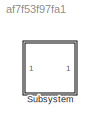
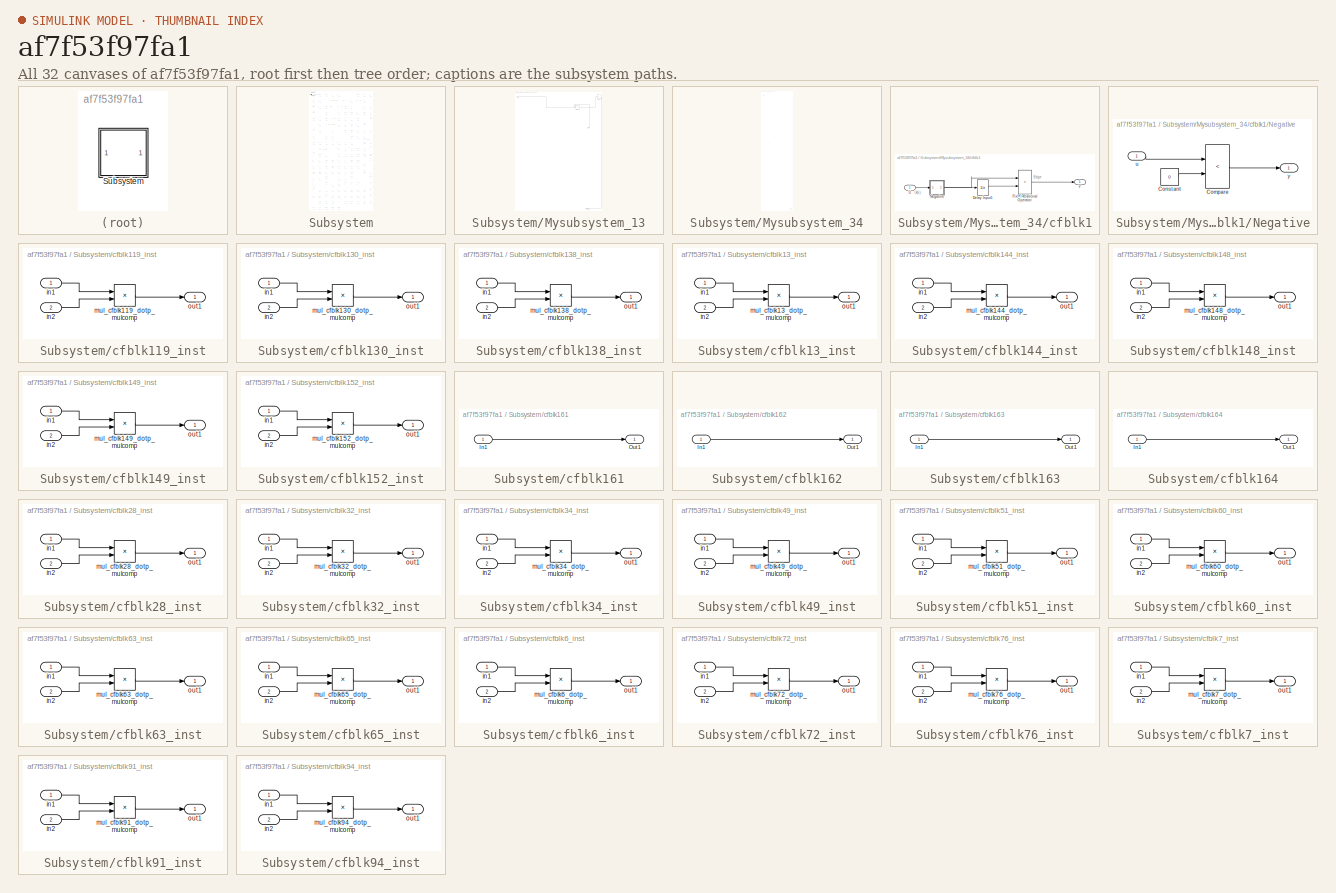
[diagram: thumbnail index - all 32 canvases of the model, root first then tree order]
MODEL slx_af7f53f97fa1
KIND model
CONFIG AbsTol = auto
CONFIG EnableMultiTasking = off
CONFIG FixedStep = auto
CONFIG MaxStep = auto
CONFIG MinStep = auto
CONFIG RelTol = 1e-3
CONFIG SampleTimeConstraint = Unconstrained
CONFIG SolverName = VariableStepAuto
CONFIG StartTime = 0.0
CONFIG StopTime = 10.0
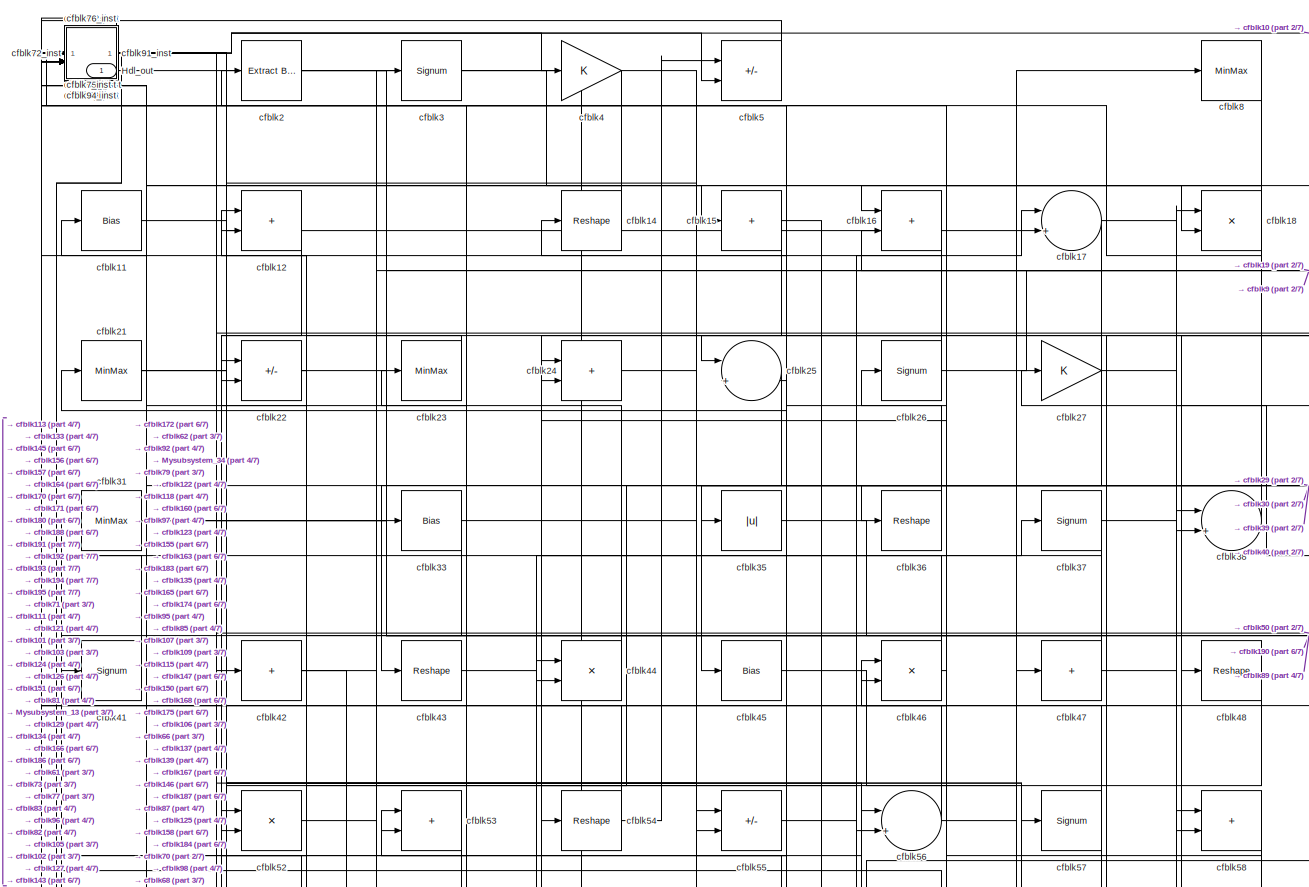
[diagram: Subsystem - part 1/7, full width, top band]
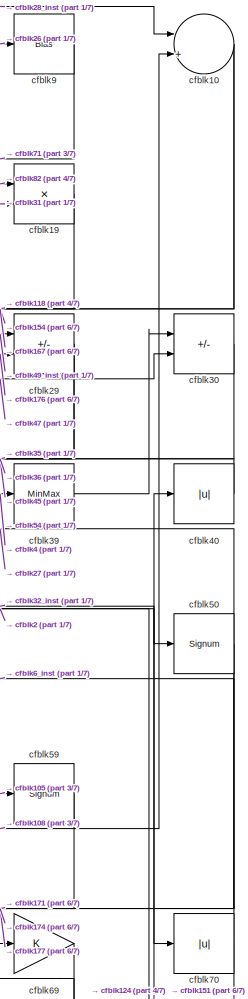
[diagram: Subsystem - part 2/7, top right region]
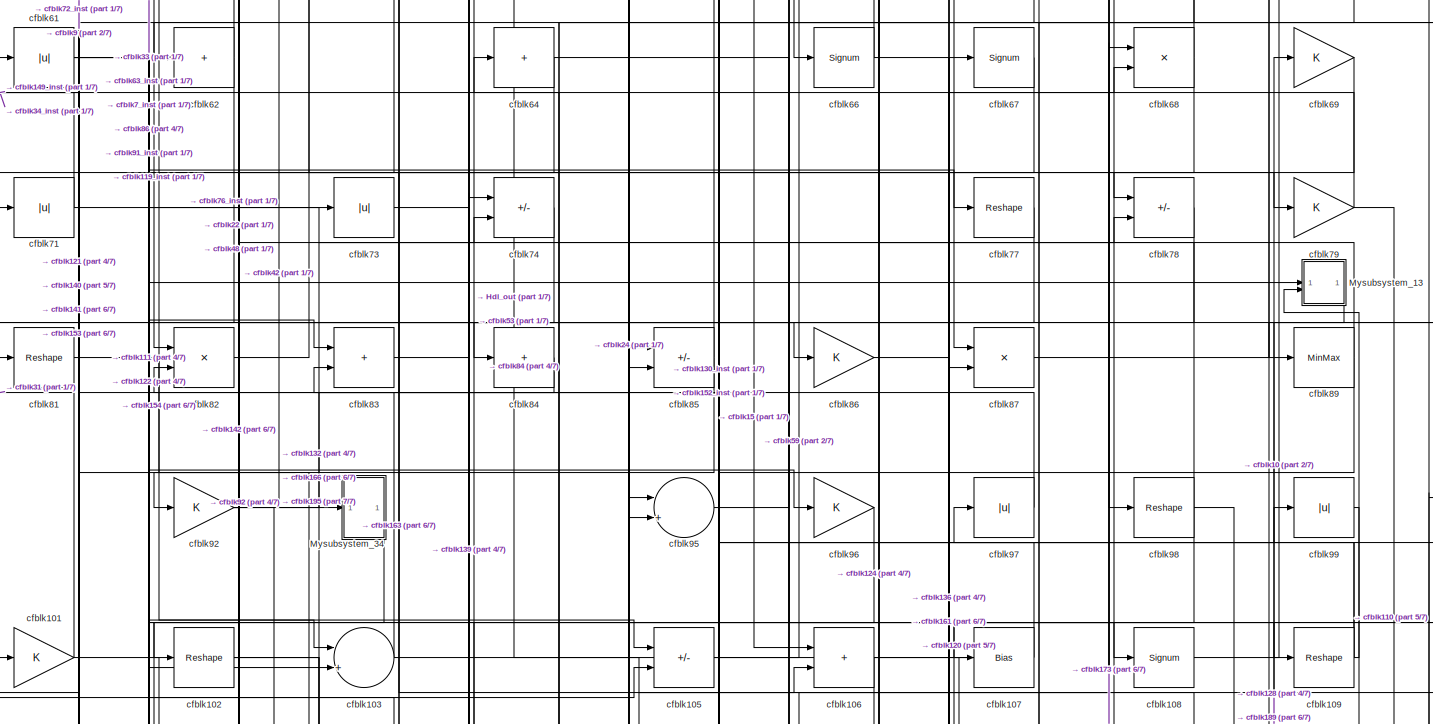
[diagram: Subsystem - part 3/7, full width, middle band]
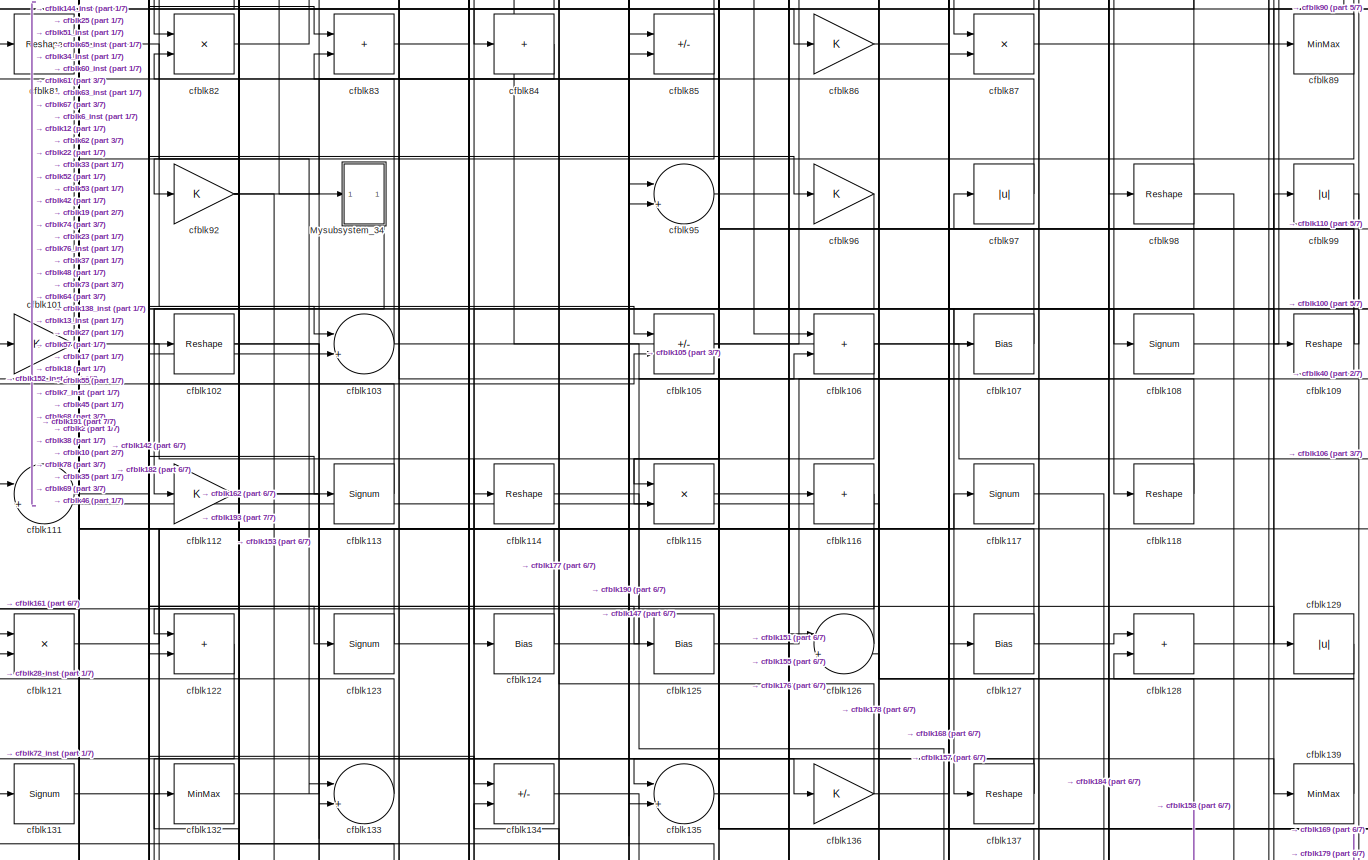
[diagram: Subsystem - part 4/7, full width, middle band]
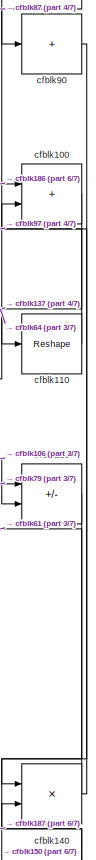
[diagram: Subsystem - part 5/7, middle right region]
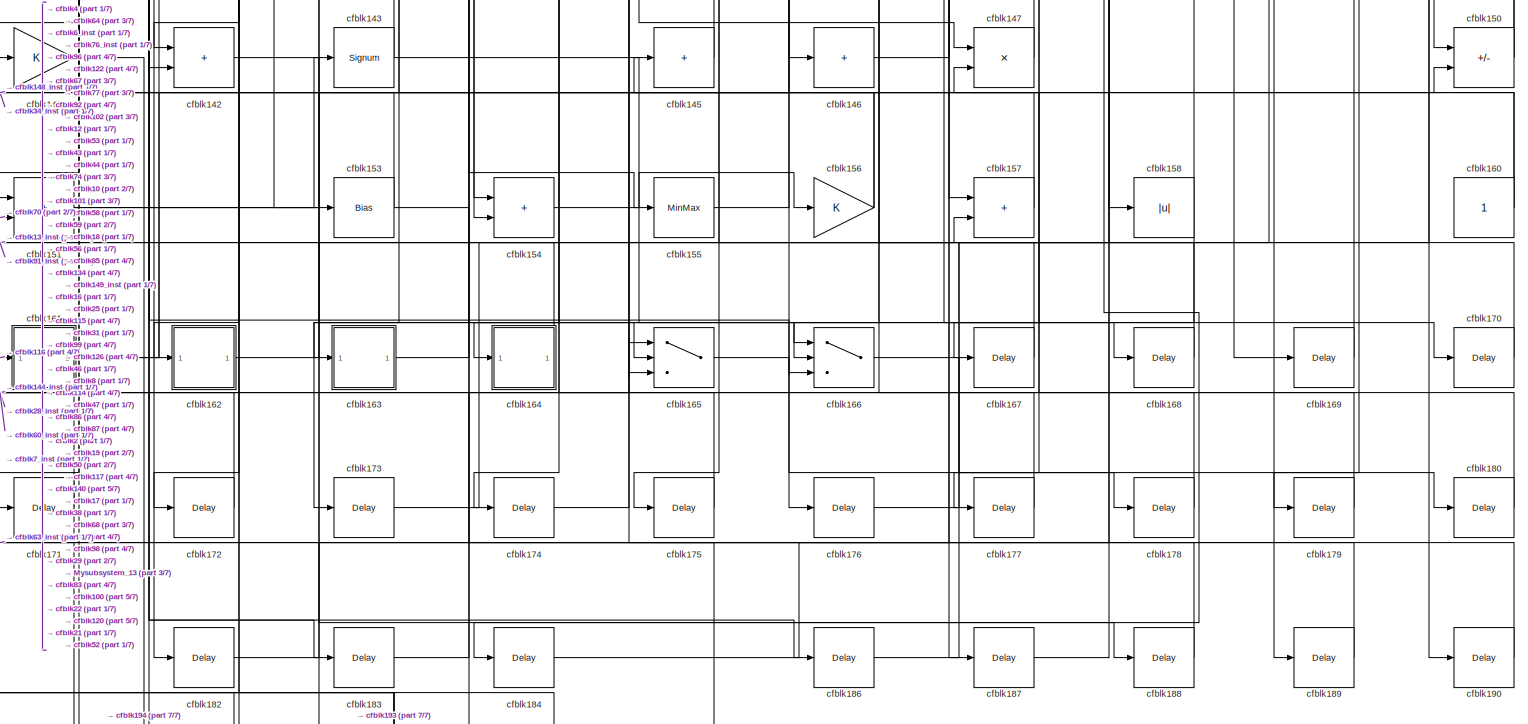
[diagram: Subsystem - part 6/7, full width, bottom band]
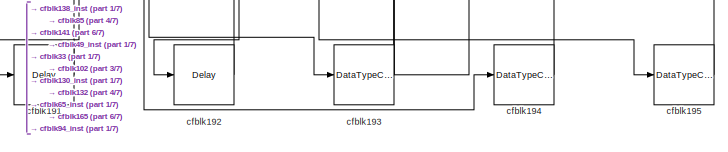
[diagram: Subsystem - part 7/7, bottom left region]
BLOCK [SubSystem] Subsystem
BLOCK [Outport] Subsystem/Hdl_out
  OutDataTypeStr = uint8
  SampleTime = 1
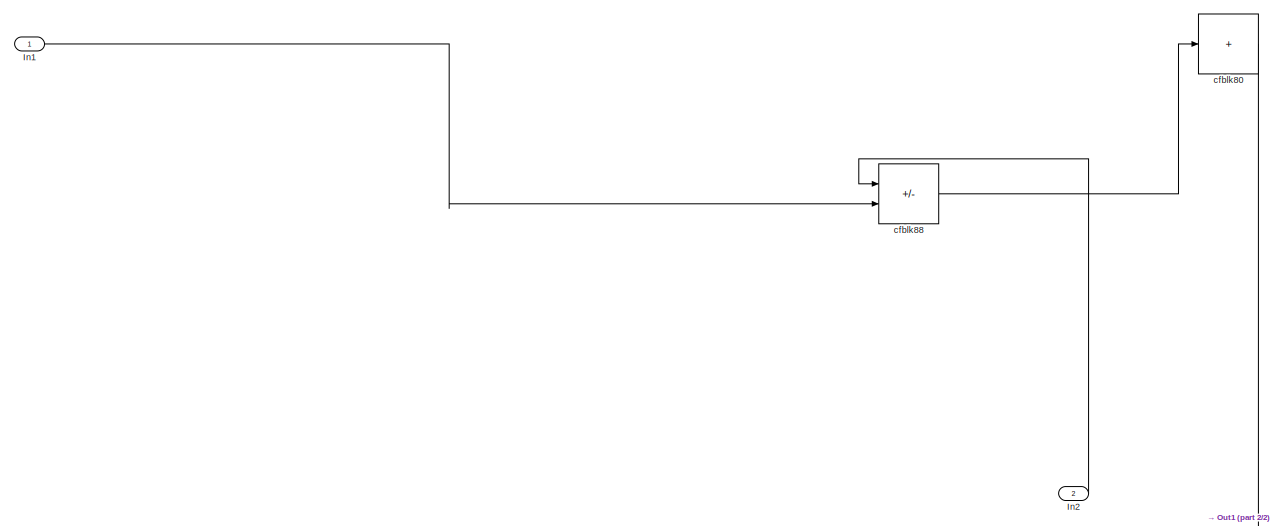
[diagram: Subsystem/Mysubsystem_13 - part 1/2, full width, top band]
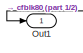
[diagram: Subsystem/Mysubsystem_13 - part 2/2, bottom right region]
BLOCK [SubSystem] Subsystem/Mysubsystem_13
BLOCK [Inport] Subsystem/Mysubsystem_13/In1
  OutDataTypeStr = uint8
  PortDimensions = 1
  SampleTime = 1
BLOCK [Inport] Subsystem/Mysubsystem_13/In2
  OutDataTypeStr = uint8
  Port = 2
  PortDimensions = 1
  SampleTime = 1
BLOCK [Outport] Subsystem/Mysubsystem_13/Out1
  SampleTime = 1
BLOCK [Sum] Subsystem/Mysubsystem_13/cfblk80
  IconShape = rectangular
  Inputs = +
BLOCK [Sum] Subsystem/Mysubsystem_13/cfblk88
  IconShape = rectangular
  Inputs = +-
BLOCK [SubSystem] Subsystem/Mysubsystem_34
BLOCK [Inport] Subsystem/Mysubsystem_34/In1
  OutDataTypeStr = uint8
  PortDimensions = 1
  SampleTime = 1
BLOCK [Outport] Subsystem/Mysubsystem_34/Y
  SampleTime = 1
BLOCK [SubSystem] Subsystem/Mysubsystem_34/cfblk1
BLOCK [UnitDelay] Subsystem/Mysubsystem_34/cfblk1/Delay Input1
  Description = Store in Global RAM
  DisableCoverage = on
  HasFrameUpgradeWarning = on
  InitialCondition = vinit
  SampleTime = -1
BLOCK [RelationalOperator] Subsystem/Mysubsystem_34/cfblk1/FixPt Relational Operator
  InputSameDT = off
  Operator = >
  OutDataTypeStr = boolean
  ZeroCross = off
BLOCK [SubSystem] Subsystem/Mysubsystem_34/cfblk1/Negative
BLOCK [RelationalOperator] Subsystem/Mysubsystem_34/cfblk1/Negative/Compare
  Operator = <
  OutDataTypeStr = boolean
  ZeroCross = off
BLOCK [Constant] Subsystem/Mysubsystem_34/cfblk1/Negative/Constant
  DisableCoverage = on
  OutDataTypeStr = Inherit: Inherit via back propagation
  PreserveConstantTs = on
  SampleTime = -1
  Value = 0
BLOCK [Inport] Subsystem/Mysubsystem_34/cfblk1/Negative/u
  OutDataTypeStr = uint8
  SampleTime = 1
BLOCK [Outport] Subsystem/Mysubsystem_34/cfblk1/Negative/y
  SampleTime = 1
BLOCK [Inport] Subsystem/Mysubsystem_34/cfblk1/U
  OutDataTypeStr = uint8
  SampleTime = 1
BLOCK [Outport] Subsystem/Mysubsystem_34/cfblk1/Y
  SampleTime = 1
BLOCK [Delay] Subsystem/Mysubsystem_34/cfblk185
  InputPortMap = u0
  SampleTime = 1
BLOCK [Sum] Subsystem/cfblk10
  Inputs = |++
  OutDataTypeStr = uint8
BLOCK [Sum] Subsystem/cfblk100
  IconShape = rectangular
  OutDataTypeStr = uint8
BLOCK [Gain] Subsystem/cfblk101
  OutDataTypeStr = uint8
BLOCK [Reshape] Subsystem/cfblk102
BLOCK [Sum] Subsystem/cfblk103
  Inputs = |++
  OutDataTypeStr = uint8
BLOCK [Sum] Subsystem/cfblk105
  IconShape = rectangular
  Inputs = +-
  OutDataTypeStr = uint8
BLOCK [Sum] Subsystem/cfblk106
  IconShape = rectangular
  OutDataTypeStr = uint8
BLOCK [Bias] Subsystem/cfblk107
  Bias = 0.0
  SaturateOnIntegerOverflow = off
BLOCK [Signum] Subsystem/cfblk108
BLOCK [Reshape] Subsystem/cfblk109
BLOCK [Bias] Subsystem/cfblk11
  Bias = 0.0
  SaturateOnIntegerOverflow = off
BLOCK [Reshape] Subsystem/cfblk110
BLOCK [Sum] Subsystem/cfblk111
  Inputs = |++
  OutDataTypeStr = uint8
BLOCK [Gain] Subsystem/cfblk112
  OutDataTypeStr = uint8
BLOCK [Signum] Subsystem/cfblk113
BLOCK [Reshape] Subsystem/cfblk114
BLOCK [Product] Subsystem/cfblk115
  Inputs = */
  OutDataTypeStr = uint8
  RndMeth = Zero
  SaturateOnIntegerOverflow = on
BLOCK [Sum] Subsystem/cfblk116
  IconShape = rectangular
  Inputs = +
  OutDataTypeStr = uint8
BLOCK [Signum] Subsystem/cfblk117
BLOCK [Reshape] Subsystem/cfblk118
BLOCK [SubSystem] Subsystem/cfblk119_inst
BLOCK [Inport] Subsystem/cfblk119_inst/in1
  OutDataTypeStr = uint8
  SampleTime = 1
BLOCK [Inport] Subsystem/cfblk119_inst/in2
  OutDataTypeStr = uint8
  Port = 2
  SampleTime = 1
BLOCK [Product] Subsystem/cfblk119_inst/mul_cfblk119_dotp_mulcomp
  Inputs = **
  OutDataTypeStr = uint8
  SampleTime = 1
BLOCK [Outport] Subsystem/cfblk119_inst/out1
  OutDataTypeStr = uint8
  SampleTime = 1
BLOCK [Sum] Subsystem/cfblk12
  IconShape = rectangular
  OutDataTypeStr = uint8
BLOCK [Sum] Subsystem/cfblk120
  IconShape = rectangular
  Inputs = +-
  OutDataTypeStr = uint8
BLOCK [Product] Subsystem/cfblk121
  Inputs = */
  OutDataTypeStr = uint8
  RndMeth = Zero
  SaturateOnIntegerOverflow = on
BLOCK [Sum] Subsystem/cfblk122
  IconShape = rectangular
  OutDataTypeStr = uint8
BLOCK [Signum] Subsystem/cfblk123
BLOCK [Bias] Subsystem/cfblk124
  Bias = 0.0
  SaturateOnIntegerOverflow = off
BLOCK [Bias] Subsystem/cfblk125
  Bias = 0.0
  SaturateOnIntegerOverflow = off
BLOCK [Sum] Subsystem/cfblk126
  Inputs = |++
  OutDataTypeStr = uint8
BLOCK [Bias] Subsystem/cfblk127
  Bias = 0.0
  SaturateOnIntegerOverflow = off
BLOCK [Sum] Subsystem/cfblk128
  IconShape = rectangular
  OutDataTypeStr = uint8
BLOCK [Abs] Subsystem/cfblk129
  OutDataTypeStr = uint8
  SaturateOnIntegerOverflow = off
BLOCK [SubSystem] Subsystem/cfblk130_inst
BLOCK [Inport] Subsystem/cfblk130_inst/in1
  OutDataTypeStr = uint8
  SampleTime = 1
BLOCK [Inport] Subsystem/cfblk130_inst/in2
  OutDataTypeStr = uint8
  Port = 2
  SampleTime = 1
BLOCK [Product] Subsystem/cfblk130_inst/mul_cfblk130_dotp_mulcomp
  Inputs = **
  OutDataTypeStr = uint8
  SampleTime = 1
BLOCK [Outport] Subsystem/cfblk130_inst/out1
  OutDataTypeStr = uint8
  SampleTime = 1
BLOCK [Signum] Subsystem/cfblk131
BLOCK [MinMax] Subsystem/cfblk132
  OutDataTypeStr = uint8
BLOCK [Sum] Subsystem/cfblk133
  Inputs = |++
  OutDataTypeStr = uint8
BLOCK [Sum] Subsystem/cfblk134
  IconShape = rectangular
  Inputs = +-
  OutDataTypeStr = uint8
BLOCK [Sum] Subsystem/cfblk135
  Inputs = |++
  OutDataTypeStr = uint8
BLOCK [Gain] Subsystem/cfblk136
  OutDataTypeStr = uint8
BLOCK [Reshape] Subsystem/cfblk137
BLOCK [SubSystem] Subsystem/cfblk138_inst
BLOCK [Inport] Subsystem/cfblk138_inst/in1
  OutDataTypeStr = uint8
  SampleTime = 1
BLOCK [Inport] Subsystem/cfblk138_inst/in2
  OutDataTypeStr = uint8
  Port = 2
  SampleTime = 1
BLOCK [Product] Subsystem/cfblk138_inst/mul_cfblk138_dotp_mulcomp
  Inputs = **
  OutDataTypeStr = uint8
  SampleTime = 1
BLOCK [Outport] Subsystem/cfblk138_inst/out1
  OutDataTypeStr = uint8
  SampleTime = 1
BLOCK [MinMax] Subsystem/cfblk139
  OutDataTypeStr = uint8
BLOCK [SubSystem] Subsystem/cfblk13_inst
BLOCK [Inport] Subsystem/cfblk13_inst/in1
  OutDataTypeStr = uint8
  SampleTime = 1
BLOCK [Inport] Subsystem/cfblk13_inst/in2
  OutDataTypeStr = uint8
  Port = 2
  SampleTime = 1
BLOCK [Product] Subsystem/cfblk13_inst/mul_cfblk13_dotp_mulcomp
  Inputs = **
  OutDataTypeStr = uint8
  SampleTime = 1
BLOCK [Outport] Subsystem/cfblk13_inst/out1
  OutDataTypeStr = uint8
  SampleTime = 1
BLOCK [Reshape] Subsystem/cfblk14
BLOCK [Product] Subsystem/cfblk140
  Inputs = */
  OutDataTypeStr = uint8
  RndMeth = Zero
  SaturateOnIntegerOverflow = on
BLOCK [Gain] Subsystem/cfblk141
  OutDataTypeStr = uint8
BLOCK [Sum] Subsystem/cfblk142
  IconShape = rectangular
  OutDataTypeStr = uint8
BLOCK [Signum] Subsystem/cfblk143
BLOCK [SubSystem] Subsystem/cfblk144_inst
BLOCK [Inport] Subsystem/cfblk144_inst/in1
  OutDataTypeStr = uint8
  SampleTime = 1
BLOCK [Inport] Subsystem/cfblk144_inst/in2
  OutDataTypeStr = uint8
  Port = 2
  SampleTime = 1
BLOCK [Product] Subsystem/cfblk144_inst/mul_cfblk144_dotp_mulcomp
  Inputs = **
  OutDataTypeStr = uint8
  SampleTime = 1
BLOCK [Outport] Subsystem/cfblk144_inst/out1
  OutDataTypeStr = uint8
  SampleTime = 1
BLOCK [Sum] Subsystem/cfblk145
  IconShape = rectangular
  Inputs = +
  OutDataTypeStr = uint8
BLOCK [Sum] Subsystem/cfblk146
  IconShape = rectangular
  Inputs = +
  OutDataTypeStr = uint8
BLOCK [Product] Subsystem/cfblk147
  Inputs = */
  OutDataTypeStr = uint8
  RndMeth = Zero
  SaturateOnIntegerOverflow = on
BLOCK [SubSystem] Subsystem/cfblk148_inst
BLOCK [Inport] Subsystem/cfblk148_inst/in1
  OutDataTypeStr = uint8
  SampleTime = 1
BLOCK [Inport] Subsystem/cfblk148_inst/in2
  OutDataTypeStr = uint8
  Port = 2
  SampleTime = 1
BLOCK [Product] Subsystem/cfblk148_inst/mul_cfblk148_dotp_mulcomp
  Inputs = **
  OutDataTypeStr = uint8
  SampleTime = 1
BLOCK [Outport] Subsystem/cfblk148_inst/out1
  OutDataTypeStr = uint8
  SampleTime = 1
BLOCK [SubSystem] Subsystem/cfblk149_inst
BLOCK [Inport] Subsystem/cfblk149_inst/in1
  OutDataTypeStr = uint8
  SampleTime = 1
BLOCK [Inport] Subsystem/cfblk149_inst/in2
  OutDataTypeStr = uint8
  Port = 2
  SampleTime = 1
BLOCK [Product] Subsystem/cfblk149_inst/mul_cfblk149_dotp_mulcomp
  Inputs = **
  OutDataTypeStr = uint8
  SampleTime = 1
BLOCK [Outport] Subsystem/cfblk149_inst/out1
  OutDataTypeStr = uint8
  SampleTime = 1
BLOCK [Sum] Subsystem/cfblk15
  IconShape = rectangular
  Inputs = +
  OutDataTypeStr = uint8
BLOCK [Sum] Subsystem/cfblk150
  IconShape = rectangular
  Inputs = +-
  OutDataTypeStr = uint8
BLOCK [Sum] Subsystem/cfblk151
  IconShape = rectangular
  OutDataTypeStr = uint8
BLOCK [SubSystem] Subsystem/cfblk152_inst
BLOCK [Inport] Subsystem/cfblk152_inst/in1
  OutDataTypeStr = uint8
  SampleTime = 1
BLOCK [Inport] Subsystem/cfblk152_inst/in2
  OutDataTypeStr = uint8
  Port = 2
  SampleTime = 1
BLOCK [Product] Subsystem/cfblk152_inst/mul_cfblk152_dotp_mulcomp
  Inputs = **
  OutDataTypeStr = uint8
  SampleTime = 1
BLOCK [Outport] Subsystem/cfblk152_inst/out1
  OutDataTypeStr = uint8
  SampleTime = 1
BLOCK [Bias] Subsystem/cfblk153
  Bias = 0.0
  SaturateOnIntegerOverflow = off
BLOCK [Sum] Subsystem/cfblk154
  IconShape = rectangular
  OutDataTypeStr = uint8
BLOCK [MinMax] Subsystem/cfblk155
  OutDataTypeStr = uint8
BLOCK [Gain] Subsystem/cfblk156
  OutDataTypeStr = uint8
BLOCK [Sum] Subsystem/cfblk157
  IconShape = rectangular
  OutDataTypeStr = uint8
BLOCK [Abs] Subsystem/cfblk158
  OutDataTypeStr = uint8
  SaturateOnIntegerOverflow = off
BLOCK [Sum] Subsystem/cfblk16
  IconShape = rectangular
  OutDataTypeStr = uint8
BLOCK [Constant] Subsystem/cfblk160
  OutDataTypeStr = uint8
  SampleTime = -1
BLOCK [SubSystem] Subsystem/cfblk161
BLOCK [Inport] Subsystem/cfblk161/In1
  OutDataTypeStr = uint8
  PortDimensions = 1
  SampleTime = 1
BLOCK [Outport] Subsystem/cfblk161/Out1
  SampleTime = 1
BLOCK [SubSystem] Subsystem/cfblk162
BLOCK [Inport] Subsystem/cfblk162/In1
  OutDataTypeStr = uint8
  PortDimensions = 1
  SampleTime = 1
BLOCK [Outport] Subsystem/cfblk162/Out1
  SampleTime = 1
BLOCK [SubSystem] Subsystem/cfblk163
BLOCK [Inport] Subsystem/cfblk163/In1
  OutDataTypeStr = uint8
  PortDimensions = 1
  SampleTime = 1
BLOCK [Outport] Subsystem/cfblk163/Out1
  SampleTime = 1
BLOCK [SubSystem] Subsystem/cfblk164
BLOCK [Inport] Subsystem/cfblk164/In1
  OutDataTypeStr = uint8
  PortDimensions = 1
  SampleTime = 1
BLOCK [Outport] Subsystem/cfblk164/Out1
  SampleTime = 1
BLOCK [Switch] Subsystem/cfblk165
  InputSameDT = off
  OutDataTypeStr = uint8
  SaturateOnIntegerOverflow = off
BLOCK [Switch] Subsystem/cfblk166
  InputSameDT = off
  OutDataTypeStr = uint8
  SaturateOnIntegerOverflow = off
BLOCK [Delay] Subsystem/cfblk167
  InputPortMap = u0
  SampleTime = 1
BLOCK [Delay] Subsystem/cfblk168
  InputPortMap = u0
  SampleTime = 1
BLOCK [Delay] Subsystem/cfblk169
  InputPortMap = u0
  SampleTime = 1
BLOCK [Sum] Subsystem/cfblk17
  Inputs = |++
  OutDataTypeStr = uint8
BLOCK [Delay] Subsystem/cfblk170
  InputPortMap = u0
  SampleTime = 1
BLOCK [Delay] Subsystem/cfblk171
  InputPortMap = u0
  SampleTime = 1
BLOCK [Delay] Subsystem/cfblk172
  InputPortMap = u0
  SampleTime = 1
BLOCK [Delay] Subsystem/cfblk173
  InputPortMap = u0
  SampleTime = 1
BLOCK [Delay] Subsystem/cfblk174
  InputPortMap = u0
  SampleTime = 1
BLOCK [Delay] Subsystem/cfblk175
  InputPortMap = u0
  SampleTime = 1
BLOCK [Delay] Subsystem/cfblk176
  InputPortMap = u0
  SampleTime = 1
BLOCK [Delay] Subsystem/cfblk177
  InputPortMap = u0
  SampleTime = 1
BLOCK [Delay] Subsystem/cfblk178
  InputPortMap = u0
  SampleTime = 1
BLOCK [Delay] Subsystem/cfblk179
  InputPortMap = u0
  SampleTime = 1
BLOCK [Product] Subsystem/cfblk18
  Inputs = */
  OutDataTypeStr = uint8
  RndMeth = Zero
  SaturateOnIntegerOverflow = on
BLOCK [Delay] Subsystem/cfblk180
  InputPortMap = u0
  SampleTime = 1
BLOCK [Delay] Subsystem/cfblk182
  InputPortMap = u0
  SampleTime = 1
BLOCK [Delay] Subsystem/cfblk183
  InputPortMap = u0
  SampleTime = 1
BLOCK [Delay] Subsystem/cfblk184
  InputPortMap = u0
  SampleTime = 1
BLOCK [Delay] Subsystem/cfblk186
  InputPortMap = u0
  SampleTime = 1
BLOCK [Delay] Subsystem/cfblk187
  InputPortMap = u0
  SampleTime = 1
BLOCK [Delay] Subsystem/cfblk188
  InputPortMap = u0
  SampleTime = 1
BLOCK [Delay] Subsystem/cfblk189
  InputPortMap = u0
  SampleTime = 1
BLOCK [Product] Subsystem/cfblk19
  Inputs = */
  OutDataTypeStr = uint8
  RndMeth = Zero
  SaturateOnIntegerOverflow = on
BLOCK [Delay] Subsystem/cfblk190
  InputPortMap = u0
  SampleTime = 1
BLOCK [Delay] Subsystem/cfblk191
  InputPortMap = u0
  SampleTime = 1
BLOCK [Delay] Subsystem/cfblk192
  InputPortMap = u0
  SampleTime = 1
BLOCK [DataTypeConversion] Subsystem/cfblk193
  OutDataTypeStr = uint8
  RndMeth = Floor
  SaturateOnIntegerOverflow = off
BLOCK [DataTypeConversion] Subsystem/cfblk194
  OutDataTypeStr = uint8
  RndMeth = Floor
  SaturateOnIntegerOverflow = off
BLOCK [DataTypeConversion] Subsystem/cfblk195
  OutDataTypeStr = uint8
  RndMeth = Floor
  SaturateOnIntegerOverflow = off
BLOCK [Reference] Subsystem/cfblk2  REF=simulink/Logic and Bit
Operations/Extract Bits
  LibrarySourceBlock = hdlsllib/Logic and Bit\nOperations/Extract Bits
  SourceBlock = simulink/Logic and Bit\nOperations/Extract Bits
  SourceType = Extract Bits
BLOCK [MinMax] Subsystem/cfblk21
  OutDataTypeStr = uint8
BLOCK [Sum] Subsystem/cfblk22
  IconShape = rectangular
  Inputs = +-
  OutDataTypeStr = uint8
BLOCK [MinMax] Subsystem/cfblk23
  OutDataTypeStr = uint8
BLOCK [Sum] Subsystem/cfblk24
  IconShape = rectangular
  OutDataTypeStr = uint8
BLOCK [Sum] Subsystem/cfblk25
  Inputs = |++
  OutDataTypeStr = uint8
BLOCK [Signum] Subsystem/cfblk26
BLOCK [Gain] Subsystem/cfblk27
  OutDataTypeStr = uint8
BLOCK [SubSystem] Subsystem/cfblk28_inst
BLOCK [Inport] Subsystem/cfblk28_inst/in1
  OutDataTypeStr = uint8
  SampleTime = 1
BLOCK [Inport] Subsystem/cfblk28_inst/in2
  OutDataTypeStr = uint8
  Port = 2
  SampleTime = 1
BLOCK [Product] Subsystem/cfblk28_inst/mul_cfblk28_dotp_mulcomp
  Inputs = **
  OutDataTypeStr = uint8
  SampleTime = 1
BLOCK [Outport] Subsystem/cfblk28_inst/out1
  OutDataTypeStr = uint8
  SampleTime = 1
BLOCK [Sum] Subsystem/cfblk29
  IconShape = rectangular
  Inputs = +-
  OutDataTypeStr = uint8
BLOCK [Signum] Subsystem/cfblk3
BLOCK [Sum] Subsystem/cfblk30
  IconShape = rectangular
  Inputs = +-
  OutDataTypeStr = uint8
BLOCK [MinMax] Subsystem/cfblk31
  OutDataTypeStr = uint8
BLOCK [SubSystem] Subsystem/cfblk32_inst
BLOCK [Inport] Subsystem/cfblk32_inst/in1
  OutDataTypeStr = uint8
  SampleTime = 1
BLOCK [Inport] Subsystem/cfblk32_inst/in2
  OutDataTypeStr = uint8
  Port = 2
  SampleTime = 1
BLOCK [Product] Subsystem/cfblk32_inst/mul_cfblk32_dotp_mulcomp
  Inputs = **
  OutDataTypeStr = uint8
  SampleTime = 1
BLOCK [Outport] Subsystem/cfblk32_inst/out1
  OutDataTypeStr = uint8
  SampleTime = 1
BLOCK [Bias] Subsystem/cfblk33
  Bias = 0.0
  SaturateOnIntegerOverflow = off
BLOCK [SubSystem] Subsystem/cfblk34_inst
BLOCK [Inport] Subsystem/cfblk34_inst/in1
  OutDataTypeStr = uint8
  SampleTime = 1
BLOCK [Inport] Subsystem/cfblk34_inst/in2
  OutDataTypeStr = uint8
  Port = 2
  SampleTime = 1
BLOCK [Product] Subsystem/cfblk34_inst/mul_cfblk34_dotp_mulcomp
  Inputs = **
  OutDataTypeStr = uint8
  SampleTime = 1
BLOCK [Outport] Subsystem/cfblk34_inst/out1
  OutDataTypeStr = uint8
  SampleTime = 1
BLOCK [Abs] Subsystem/cfblk35
  OutDataTypeStr = uint8
  SaturateOnIntegerOverflow = off
BLOCK [Reshape] Subsystem/cfblk36
BLOCK [Signum] Subsystem/cfblk37
BLOCK [Sum] Subsystem/cfblk38
  Inputs = |++
  OutDataTypeStr = uint8
BLOCK [MinMax] Subsystem/cfblk39
  OutDataTypeStr = uint8
BLOCK [Gain] Subsystem/cfblk4
  OutDataTypeStr = uint8
BLOCK [Abs] Subsystem/cfblk40
  OutDataTypeStr = uint8
  SaturateOnIntegerOverflow = off
BLOCK [Signum] Subsystem/cfblk41
BLOCK [Sum] Subsystem/cfblk42
  IconShape = rectangular
  Inputs = +
  OutDataTypeStr = uint8
BLOCK [Reshape] Subsystem/cfblk43
BLOCK [Product] Subsystem/cfblk44
  Inputs = */
  OutDataTypeStr = uint8
  RndMeth = Zero
  SaturateOnIntegerOverflow = on
BLOCK [Bias] Subsystem/cfblk45
  Bias = 0.0
  SaturateOnIntegerOverflow = off
BLOCK [Product] Subsystem/cfblk46
  Inputs = */
  OutDataTypeStr = uint8
  RndMeth = Zero
  SaturateOnIntegerOverflow = on
BLOCK [Sum] Subsystem/cfblk47
  IconShape = rectangular
  Inputs = +
  OutDataTypeStr = uint8
BLOCK [Reshape] Subsystem/cfblk48
BLOCK [SubSystem] Subsystem/cfblk49_inst
BLOCK [Inport] Subsystem/cfblk49_inst/in1
  OutDataTypeStr = uint8
  SampleTime = 1
BLOCK [Inport] Subsystem/cfblk49_inst/in2
  OutDataTypeStr = uint8
  Port = 2
  SampleTime = 1
BLOCK [Product] Subsystem/cfblk49_inst/mul_cfblk49_dotp_mulcomp
  Inputs = **
  OutDataTypeStr = uint8
  SampleTime = 1
BLOCK [Outport] Subsystem/cfblk49_inst/out1
  OutDataTypeStr = uint8
  SampleTime = 1
BLOCK [Sum] Subsystem/cfblk5
  IconShape = rectangular
  Inputs = +-
  OutDataTypeStr = uint8
BLOCK [Signum] Subsystem/cfblk50
BLOCK [SubSystem] Subsystem/cfblk51_inst
BLOCK [Inport] Subsystem/cfblk51_inst/in1
  OutDataTypeStr = uint8
  SampleTime = 1
BLOCK [Inport] Subsystem/cfblk51_inst/in2
  OutDataTypeStr = uint8
  Port = 2
  SampleTime = 1
BLOCK [Product] Subsystem/cfblk51_inst/mul_cfblk51_dotp_mulcomp
  Inputs = **
  OutDataTypeStr = uint8
  SampleTime = 1
BLOCK [Outport] Subsystem/cfblk51_inst/out1
  OutDataTypeStr = uint8
  SampleTime = 1
BLOCK [Product] Subsystem/cfblk52
  Inputs = */
  OutDataTypeStr = uint8
  RndMeth = Zero
  SaturateOnIntegerOverflow = on
BLOCK [Sum] Subsystem/cfblk53
  IconShape = rectangular
  OutDataTypeStr = uint8
BLOCK [Reshape] Subsystem/cfblk54
BLOCK [Sum] Subsystem/cfblk55
  IconShape = rectangular
  Inputs = +-
  OutDataTypeStr = uint8
BLOCK [Sum] Subsystem/cfblk56
  Inputs = |++
  OutDataTypeStr = uint8
BLOCK [Signum] Subsystem/cfblk57
BLOCK [Sum] Subsystem/cfblk58
  IconShape = rectangular
  OutDataTypeStr = uint8
BLOCK [Signum] Subsystem/cfblk59
BLOCK [SubSystem] Subsystem/cfblk60_inst
BLOCK [Inport] Subsystem/cfblk60_inst/in1
  OutDataTypeStr = uint8
  SampleTime = 1
BLOCK [Inport] Subsystem/cfblk60_inst/in2
  OutDataTypeStr = uint8
  Port = 2
  SampleTime = 1
BLOCK [Product] Subsystem/cfblk60_inst/mul_cfblk60_dotp_mulcomp
  Inputs = **
  OutDataTypeStr = uint8
  SampleTime = 1
BLOCK [Outport] Subsystem/cfblk60_inst/out1
  OutDataTypeStr = uint8
  SampleTime = 1
BLOCK [Abs] Subsystem/cfblk61
  OutDataTypeStr = uint8
  SaturateOnIntegerOverflow = off
BLOCK [Sum] Subsystem/cfblk62
  IconShape = rectangular
  Inputs = +
  OutDataTypeStr = uint8
BLOCK [SubSystem] Subsystem/cfblk63_inst
BLOCK [Inport] Subsystem/cfblk63_inst/in1
  OutDataTypeStr = uint8
  SampleTime = 1
BLOCK [Inport] Subsystem/cfblk63_inst/in2
  OutDataTypeStr = uint8
  Port = 2
  SampleTime = 1
BLOCK [Product] Subsystem/cfblk63_inst/mul_cfblk63_dotp_mulcomp
  Inputs = **
  OutDataTypeStr = uint8
  SampleTime = 1
BLOCK [Outport] Subsystem/cfblk63_inst/out1
  OutDataTypeStr = uint8
  SampleTime = 1
BLOCK [Sum] Subsystem/cfblk64
  IconShape = rectangular
  Inputs = +
  OutDataTypeStr = uint8
BLOCK [SubSystem] Subsystem/cfblk65_inst
BLOCK [Inport] Subsystem/cfblk65_inst/in1
  OutDataTypeStr = uint8
  SampleTime = 1
BLOCK [Inport] Subsystem/cfblk65_inst/in2
  OutDataTypeStr = uint8
  Port = 2
  SampleTime = 1
BLOCK [Product] Subsystem/cfblk65_inst/mul_cfblk65_dotp_mulcomp
  Inputs = **
  OutDataTypeStr = uint8
  SampleTime = 1
BLOCK [Outport] Subsystem/cfblk65_inst/out1
  OutDataTypeStr = uint8
  SampleTime = 1
BLOCK [Signum] Subsystem/cfblk66
BLOCK [Signum] Subsystem/cfblk67
BLOCK [Product] Subsystem/cfblk68
  Inputs = */
  OutDataTypeStr = uint8
  RndMeth = Zero
  SaturateOnIntegerOverflow = on
BLOCK [Gain] Subsystem/cfblk69
  OutDataTypeStr = uint8
BLOCK [SubSystem] Subsystem/cfblk6_inst
BLOCK [Inport] Subsystem/cfblk6_inst/in1
  OutDataTypeStr = uint8
  SampleTime = 1
BLOCK [Inport] Subsystem/cfblk6_inst/in2
  OutDataTypeStr = uint8
  Port = 2
  SampleTime = 1
BLOCK [Product] Subsystem/cfblk6_inst/mul_cfblk6_dotp_mulcomp
  Inputs = **
  OutDataTypeStr = uint8
  SampleTime = 1
BLOCK [Outport] Subsystem/cfblk6_inst/out1
  OutDataTypeStr = uint8
  SampleTime = 1
BLOCK [Abs] Subsystem/cfblk70
  OutDataTypeStr = uint8
  SaturateOnIntegerOverflow = off
BLOCK [Abs] Subsystem/cfblk71
  OutDataTypeStr = uint8
  SaturateOnIntegerOverflow = off
BLOCK [SubSystem] Subsystem/cfblk72_inst
BLOCK [Inport] Subsystem/cfblk72_inst/in1
  OutDataTypeStr = uint8
  SampleTime = 1
BLOCK [Inport] Subsystem/cfblk72_inst/in2
  OutDataTypeStr = uint8
  Port = 2
  SampleTime = 1
BLOCK [Product] Subsystem/cfblk72_inst/mul_cfblk72_dotp_mulcomp
  Inputs = **
  OutDataTypeStr = uint8
  SampleTime = 1
BLOCK [Outport] Subsystem/cfblk72_inst/out1
  OutDataTypeStr = uint8
  SampleTime = 1
BLOCK [Abs] Subsystem/cfblk73
  OutDataTypeStr = uint8
  SaturateOnIntegerOverflow = off
BLOCK [Sum] Subsystem/cfblk74
  IconShape = rectangular
  Inputs = +-
  OutDataTypeStr = uint8
BLOCK [SubSystem] Subsystem/cfblk76_inst
BLOCK [Inport] Subsystem/cfblk76_inst/in1
  OutDataTypeStr = uint8
  SampleTime = 1
BLOCK [Inport] Subsystem/cfblk76_inst/in2
  OutDataTypeStr = uint8
  Port = 2
  SampleTime = 1
BLOCK [Product] Subsystem/cfblk76_inst/mul_cfblk76_dotp_mulcomp
  Inputs = **
  OutDataTypeStr = uint8
  SampleTime = 1
BLOCK [Outport] Subsystem/cfblk76_inst/out1
  OutDataTypeStr = uint8
  SampleTime = 1
BLOCK [Reshape] Subsystem/cfblk77
BLOCK [Sum] Subsystem/cfblk78
  IconShape = rectangular
  Inputs = +-
  OutDataTypeStr = uint8
BLOCK [Gain] Subsystem/cfblk79
  OutDataTypeStr = uint8
BLOCK [SubSystem] Subsystem/cfblk7_inst
BLOCK [Inport] Subsystem/cfblk7_inst/in1
  OutDataTypeStr = uint8
  SampleTime = 1
BLOCK [Inport] Subsystem/cfblk7_inst/in2
  OutDataTypeStr = uint8
  Port = 2
  SampleTime = 1
BLOCK [Product] Subsystem/cfblk7_inst/mul_cfblk7_dotp_mulcomp
  Inputs = **
  OutDataTypeStr = uint8
  SampleTime = 1
BLOCK [Outport] Subsystem/cfblk7_inst/out1
  OutDataTypeStr = uint8
  SampleTime = 1
BLOCK [MinMax] Subsystem/cfblk8
  OutDataTypeStr = uint8
BLOCK [Reshape] Subsystem/cfblk81
BLOCK [Product] Subsystem/cfblk82
  Inputs = */
  OutDataTypeStr = uint8
  RndMeth = Zero
  SaturateOnIntegerOverflow = on
BLOCK [Sum] Subsystem/cfblk83
  IconShape = rectangular
  OutDataTypeStr = uint8
BLOCK [Sum] Subsystem/cfblk84
  IconShape = rectangular
  Inputs = +
  OutDataTypeStr = uint8
BLOCK [Sum] Subsystem/cfblk85
  IconShape = rectangular
  Inputs = +-
  OutDataTypeStr = uint8
BLOCK [Gain] Subsystem/cfblk86
  OutDataTypeStr = uint8
BLOCK [Product] Subsystem/cfblk87
  Inputs = */
  OutDataTypeStr = uint8
  RndMeth = Zero
  SaturateOnIntegerOverflow = on
BLOCK [MinMax] Subsystem/cfblk89
  OutDataTypeStr = uint8
BLOCK [Bias] Subsystem/cfblk9
  Bias = 0.0
  SaturateOnIntegerOverflow = off
BLOCK [Sum] Subsystem/cfblk90
  IconShape = rectangular
  Inputs = +
  OutDataTypeStr = uint8
BLOCK [SubSystem] Subsystem/cfblk91_inst
BLOCK [Inport] Subsystem/cfblk91_inst/in1
  OutDataTypeStr = uint8
  SampleTime = 1
BLOCK [Inport] Subsystem/cfblk91_inst/in2
  OutDataTypeStr = uint8
  Port = 2
  SampleTime = 1
BLOCK [Product] Subsystem/cfblk91_inst/mul_cfblk91_dotp_mulcomp
  Inputs = **
  OutDataTypeStr = uint8
  SampleTime = 1
BLOCK [Outport] Subsystem/cfblk91_inst/out1
  OutDataTypeStr = uint8
  SampleTime = 1
BLOCK [Gain] Subsystem/cfblk92
  OutDataTypeStr = uint8
BLOCK [SubSystem] Subsystem/cfblk94_inst
BLOCK [Inport] Subsystem/cfblk94_inst/in1
  OutDataTypeStr = uint8
  SampleTime = 1
BLOCK [Inport] Subsystem/cfblk94_inst/in2
  OutDataTypeStr = uint8
  Port = 2
  SampleTime = 1
BLOCK [Product] Subsystem/cfblk94_inst/mul_cfblk94_dotp_mulcomp
  Inputs = **
  OutDataTypeStr = uint8
  SampleTime = 1
BLOCK [Outport] Subsystem/cfblk94_inst/out1
  OutDataTypeStr = uint8
  SampleTime = 1
BLOCK [Sum] Subsystem/cfblk95
  Inputs = |++
  OutDataTypeStr = uint8
BLOCK [Gain] Subsystem/cfblk96
  OutDataTypeStr = uint8
BLOCK [Abs] Subsystem/cfblk97
  OutDataTypeStr = uint8
  SaturateOnIntegerOverflow = off
BLOCK [Reshape] Subsystem/cfblk98
BLOCK [Abs] Subsystem/cfblk99
  OutDataTypeStr = uint8
  SaturateOnIntegerOverflow = off
ANNOTATION Subsystem/Mysubsystem_34/cfblk1: Edge
ANNOTATION Subsystem/Mysubsystem_34/cfblk1: U(k)
LINE Subsystem/Mysubsystem_13/In1:1 -> Subsystem/Mysubsystem_13/cfblk88:2
LINE Subsystem/Mysubsystem_13/In2:1 -> Subsystem/Mysubsystem_13/cfblk88:1
LINE Subsystem/Mysubsystem_13/cfblk80:1 -> Subsystem/Mysubsystem_13/Out1:1
LINE Subsystem/Mysubsystem_13/cfblk88:1 -> Subsystem/Mysubsystem_13/cfblk80:1
LINE Subsystem/Mysubsystem_13:1 -> Subsystem/cfblk189:1
LINE Subsystem/Mysubsystem_34/In1:1 -> Subsystem/Mysubsystem_34/cfblk185:1
LINE Subsystem/Mysubsystem_34/cfblk185:1 -> Subsystem/Mysubsystem_34/cfblk1:1
LINE Subsystem/Mysubsystem_34/cfblk1:1 -> Subsystem/Mysubsystem_34/Y:1
LINE Subsystem/Mysubsystem_34:1 -> Subsystem/cfblk112:1
LINE Subsystem/cfblk100:1 -> Subsystem/cfblk137:1
NET Subsystem/cfblk101:1 -> Subsystem/cfblk154:1, Subsystem/cfblk31:1
NET Subsystem/cfblk102:1 -> Subsystem/cfblk166:2, Subsystem/cfblk195:1
NET Subsystem/cfblk103:1 -> Subsystem/cfblk106:2, Subsystem/cfblk72_inst:1
LINE Subsystem/cfblk105:1 -> Subsystem/cfblk59:1
NET Subsystem/cfblk106:1 -> Subsystem/cfblk120:2, Subsystem/cfblk124:1
NET Subsystem/cfblk107:1 -> Subsystem/Hdl_out:1, Subsystem/cfblk53:1
LINE Subsystem/cfblk108:1 -> Subsystem/cfblk10:2
NET Subsystem/cfblk109:1 -> Subsystem/Mysubsystem_13:2, Subsystem/cfblk130_inst:2, Subsystem/cfblk152_inst:1
NET Subsystem/cfblk10:1 -> Subsystem/cfblk118:1, Subsystem/cfblk154:2
LINE Subsystem/cfblk110:1 -> Subsystem/cfblk97:1
LINE Subsystem/cfblk111:1 -> Subsystem/cfblk105:2
NET Subsystem/cfblk112:1 -> Subsystem/cfblk133:2, Subsystem/cfblk136:1
LINE Subsystem/cfblk113:1 -> Subsystem/cfblk152_inst:2
LINE Subsystem/cfblk114:1 -> Subsystem/cfblk168:1
LINE Subsystem/cfblk115:1 -> Subsystem/cfblk176:1
LINE Subsystem/cfblk116:1 -> Subsystem/cfblk161:1
LINE Subsystem/cfblk117:1 -> Subsystem/cfblk184:1
LINE Subsystem/cfblk118:1 -> Subsystem/cfblk76_inst:2
LINE Subsystem/cfblk119_inst/in1:1 -> Subsystem/cfblk119_inst/mul_cfblk119_dotp_mulcomp:1
LINE Subsystem/cfblk119_inst/in2:1 -> Subsystem/cfblk119_inst/mul_cfblk119_dotp_mulcomp:2
LINE Subsystem/cfblk119_inst/mul_cfblk119_dotp_mulcomp:1 -> Subsystem/cfblk119_inst/out1:1
LINE Subsystem/cfblk119_inst:1 -> Subsystem/cfblk105:1
LINE Subsystem/cfblk11:1 -> Subsystem/cfblk15:1
LINE Subsystem/cfblk120:1 -> Subsystem/cfblk150:1
LINE Subsystem/cfblk121:1 -> Subsystem/cfblk117:1
LINE Subsystem/cfblk122:1 -> Subsystem/cfblk182:1
NET Subsystem/cfblk123:1 -> Subsystem/cfblk144_inst:1, Subsystem/cfblk48:1
NET Subsystem/cfblk124:1 -> Subsystem/cfblk40:1, Subsystem/cfblk65_inst:2
LINE Subsystem/cfblk125:1 -> Subsystem/cfblk38:1
LINE Subsystem/cfblk126:1 -> Subsystem/cfblk51_inst:1
NET Subsystem/cfblk127:1 -> Subsystem/cfblk128:1, Subsystem/cfblk52:1
LINE Subsystem/cfblk128:1 -> Subsystem/cfblk69:1
LINE Subsystem/cfblk129:1 -> Subsystem/cfblk128:2
LINE Subsystem/cfblk12:1 -> Subsystem/cfblk82:1
LINE Subsystem/cfblk130_inst/in1:1 -> Subsystem/cfblk130_inst/mul_cfblk130_dotp_mulcomp:1
LINE Subsystem/cfblk130_inst/in2:1 -> Subsystem/cfblk130_inst/mul_cfblk130_dotp_mulcomp:2
LINE Subsystem/cfblk130_inst/mul_cfblk130_dotp_mulcomp:1 -> Subsystem/cfblk130_inst/out1:1
LINE Subsystem/cfblk130_inst:1 -> Subsystem/cfblk66:1
LINE Subsystem/cfblk131:1 -> Subsystem/cfblk85:2
LINE Subsystem/cfblk132:1 -> Subsystem/cfblk74:2
LINE Subsystem/cfblk133:1 -> Subsystem/cfblk28_inst:1
LINE Subsystem/cfblk134:1 -> Subsystem/cfblk147:1
LINE Subsystem/cfblk135:1 -> Subsystem/cfblk17:1
NET Subsystem/cfblk136:1 -> Subsystem/cfblk64:1, Subsystem/cfblk68:2
NET Subsystem/cfblk137:1 -> Subsystem/cfblk131:1, Subsystem/cfblk72_inst:2
LINE Subsystem/cfblk138_inst/in1:1 -> Subsystem/cfblk138_inst/mul_cfblk138_dotp_mulcomp:1
LINE Subsystem/cfblk138_inst/in2:1 -> Subsystem/cfblk138_inst/mul_cfblk138_dotp_mulcomp:2
LINE Subsystem/cfblk138_inst/mul_cfblk138_dotp_mulcomp:1 -> Subsystem/cfblk138_inst/out1:1
NET Subsystem/cfblk138_inst:1 -> Subsystem/cfblk87:1, Subsystem/cfblk95:1
LINE Subsystem/cfblk139:1 -> Subsystem/cfblk7_inst:2
LINE Subsystem/cfblk13_inst/in1:1 -> Subsystem/cfblk13_inst/mul_cfblk13_dotp_mulcomp:1
LINE Subsystem/cfblk13_inst/in2:1 -> Subsystem/cfblk13_inst/mul_cfblk13_dotp_mulcomp:2
LINE Subsystem/cfblk13_inst/mul_cfblk13_dotp_mulcomp:1 -> Subsystem/cfblk13_inst/out1:1
LINE Subsystem/cfblk13_inst:1 -> Subsystem/cfblk135:2
NET Subsystem/cfblk140:1 -> Subsystem/cfblk100:2, Subsystem/cfblk61:1
LINE Subsystem/cfblk141:1 -> Subsystem/cfblk194:1
LINE Subsystem/cfblk142:1 -> Subsystem/cfblk188:1
NET Subsystem/cfblk143:1 -> Subsystem/cfblk12:1, Subsystem/cfblk170:1
LINE Subsystem/cfblk144_inst/in1:1 -> Subsystem/cfblk144_inst/mul_cfblk144_dotp_mulcomp:1
LINE Subsystem/cfblk144_inst/in2:1 -> Subsystem/cfblk144_inst/mul_cfblk144_dotp_mulcomp:2
LINE Subsystem/cfblk144_inst/mul_cfblk144_dotp_mulcomp:1 -> Subsystem/cfblk144_inst/out1:1
LINE Subsystem/cfblk144_inst:1 -> Subsystem/cfblk55:1
LINE Subsystem/cfblk145:1 -> Subsystem/cfblk149_inst:2
LINE Subsystem/cfblk146:1 -> Subsystem/cfblk47:1
LINE Subsystem/cfblk147:1 -> Subsystem/cfblk2:1
LINE Subsystem/cfblk148_inst/in1:1 -> Subsystem/cfblk148_inst/mul_cfblk148_dotp_mulcomp:1
LINE Subsystem/cfblk148_inst/in2:1 -> Subsystem/cfblk148_inst/mul_cfblk148_dotp_mulcomp:2
LINE Subsystem/cfblk148_inst/mul_cfblk148_dotp_mulcomp:1 -> Subsystem/cfblk148_inst/out1:1
LINE Subsystem/cfblk148_inst:1 -> Subsystem/cfblk57:1
LINE Subsystem/cfblk149_inst/in1:1 -> Subsystem/cfblk149_inst/mul_cfblk149_dotp_mulcomp:1
LINE Subsystem/cfblk149_inst/in2:1 -> Subsystem/cfblk149_inst/mul_cfblk149_dotp_mulcomp:2
LINE Subsystem/cfblk149_inst/mul_cfblk149_dotp_mulcomp:1 -> Subsystem/cfblk149_inst/out1:1
LINE Subsystem/cfblk149_inst:1 -> Subsystem/cfblk32_inst:1
LINE Subsystem/cfblk14:1 -> Subsystem/cfblk13_inst:1
NET Subsystem/cfblk150:1 -> Subsystem/cfblk21:1, Subsystem/cfblk52:2
NET Subsystem/cfblk151:1 -> Subsystem/cfblk116:1, Subsystem/cfblk143:1
LINE Subsystem/cfblk152_inst/in1:1 -> Subsystem/cfblk152_inst/mul_cfblk152_dotp_mulcomp:1
LINE Subsystem/cfblk152_inst/in2:1 -> Subsystem/cfblk152_inst/mul_cfblk152_dotp_mulcomp:2
LINE Subsystem/cfblk152_inst/mul_cfblk152_dotp_mulcomp:1 -> Subsystem/cfblk152_inst/out1:1
LINE Subsystem/cfblk152_inst:1 -> Subsystem/cfblk111:1
NET Subsystem/cfblk153:1 -> Subsystem/cfblk101:1, Subsystem/cfblk165:2
LINE Subsystem/cfblk154:1 -> Subsystem/cfblk156:1
LINE Subsystem/cfblk155:1 -> Subsystem/cfblk99:1
NET Subsystem/cfblk156:1 -> Subsystem/cfblk145:1, Subsystem/cfblk34_inst:2
LINE Subsystem/cfblk157:1 -> Subsystem/cfblk148_inst:1
NET Subsystem/cfblk158:1 -> Subsystem/cfblk111:2, Subsystem/cfblk173:1
NET Subsystem/cfblk15:1 -> Subsystem/cfblk106:1, Subsystem/cfblk25:1
NET Subsystem/cfblk160:1 -> Subsystem/cfblk148_inst:2, Subsystem/cfblk53:2
LINE Subsystem/cfblk161/In1:1 -> Subsystem/cfblk161/Out1:1
NET Subsystem/cfblk161:1 -> Subsystem/cfblk150:2, Subsystem/cfblk67:1
LINE Subsystem/cfblk162/In1:1 -> Subsystem/cfblk162/Out1:1
LINE Subsystem/cfblk162:1 -> Subsystem/cfblk157:2
LINE Subsystem/cfblk163/In1:1 -> Subsystem/cfblk163/Out1:1
LINE Subsystem/cfblk163:1 -> Subsystem/cfblk44:1
LINE Subsystem/cfblk164/In1:1 -> Subsystem/cfblk164/Out1:1
LINE Subsystem/cfblk164:1 -> Subsystem/cfblk13_inst:2
LINE Subsystem/cfblk165:1 -> Subsystem/cfblk180:1
LINE Subsystem/cfblk166:1 -> Subsystem/cfblk178:1
LINE Subsystem/cfblk167:1 -> Subsystem/cfblk46:1
LINE Subsystem/cfblk168:1 -> Subsystem/cfblk25:2
LINE Subsystem/cfblk169:1 -> Subsystem/cfblk83:2
LINE Subsystem/cfblk16:1 -> Subsystem/cfblk175:1
LINE Subsystem/cfblk170:1 -> Subsystem/cfblk91_inst:1
LINE Subsystem/cfblk171:1 -> Subsystem/cfblk144_inst:2
LINE Subsystem/cfblk172:1 -> Subsystem/cfblk28_inst:2
LINE Subsystem/cfblk173:1 -> Subsystem/cfblk68:1
LINE Subsystem/cfblk174:1 -> Subsystem/cfblk56:1
LINE Subsystem/cfblk175:1 -> Subsystem/cfblk7_inst:1
LINE Subsystem/cfblk176:1 -> Subsystem/cfblk29:2
LINE Subsystem/cfblk177:1 -> Subsystem/cfblk134:2
LINE Subsystem/cfblk178:1 -> Subsystem/cfblk126:2
LINE Subsystem/cfblk179:1 -> Subsystem/cfblk147:2
NET Subsystem/cfblk17:1 -> Subsystem/cfblk158:1, Subsystem/cfblk172:1
LINE Subsystem/cfblk180:1 -> Subsystem/cfblk60_inst:1
LINE Subsystem/cfblk182:1 -> Subsystem/cfblk87:2
LINE Subsystem/cfblk183:1 -> Subsystem/cfblk44:2
LINE Subsystem/cfblk184:1 -> Subsystem/cfblk38:2
LINE Subsystem/cfblk186:1 -> Subsystem/cfblk100:1
LINE Subsystem/cfblk187:1 -> Subsystem/cfblk140:2
LINE Subsystem/cfblk188:1 -> Subsystem/cfblk63_inst:1
LINE Subsystem/cfblk189:1 -> Subsystem/cfblk74:1
NET Subsystem/cfblk18:1 -> Subsystem/cfblk165:3, Subsystem/cfblk16:1, Subsystem/cfblk43:1
LINE Subsystem/cfblk190:1 -> Subsystem/cfblk85:1
LINE Subsystem/cfblk191:1 -> Subsystem/cfblk138_inst:2
LINE Subsystem/cfblk192:1 -> Subsystem/cfblk49_inst:1
NET Subsystem/cfblk193:1 -> Subsystem/cfblk130_inst:1, Subsystem/cfblk132:1, Subsystem/cfblk165:1, Subsystem/cfblk65_inst:1
LINE Subsystem/cfblk194:1 -> Subsystem/cfblk94_inst:1
LINE Subsystem/cfblk195:1 -> Subsystem/cfblk94_inst:2
LINE Subsystem/cfblk19:1 -> Subsystem/cfblk167:1
NET Subsystem/cfblk21:1 -> Subsystem/cfblk17:2, Subsystem/cfblk56:2
NET Subsystem/cfblk22:1 -> Subsystem/cfblk190:1, Subsystem/cfblk62:1
LINE Subsystem/cfblk23:1 -> Subsystem/cfblk22:1
LINE Subsystem/cfblk24:1 -> Subsystem/cfblk107:1
LINE Subsystem/cfblk25:1 -> Subsystem/cfblk81:1
NET Subsystem/cfblk26:1 -> Subsystem/cfblk138_inst:1, Subsystem/cfblk9:1
NET Subsystem/cfblk27:1 -> Subsystem/cfblk115:2, Subsystem/cfblk16:2, Subsystem/cfblk58:1
LINE Subsystem/cfblk28_inst/in1:1 -> Subsystem/cfblk28_inst/mul_cfblk28_dotp_mulcomp:1
LINE Subsystem/cfblk28_inst/in2:1 -> Subsystem/cfblk28_inst/mul_cfblk28_dotp_mulcomp:2
LINE Subsystem/cfblk28_inst/mul_cfblk28_dotp_mulcomp:1 -> Subsystem/cfblk28_inst/out1:1
NET Subsystem/cfblk28_inst:1 -> Subsystem/cfblk10:1, Subsystem/cfblk125:1, Subsystem/cfblk166:3
NET Subsystem/cfblk29:1 -> Subsystem/cfblk35:1, Subsystem/cfblk45:1
NET Subsystem/cfblk2:1 -> Subsystem/cfblk70:1, Subsystem/cfblk98:1
LINE Subsystem/cfblk30:1 -> Subsystem/cfblk54:1
NET Subsystem/cfblk31:1 -> Subsystem/cfblk146:1, Subsystem/cfblk187:1, Subsystem/cfblk19:2
LINE Subsystem/cfblk32_inst/in1:1 -> Subsystem/cfblk32_inst/mul_cfblk32_dotp_mulcomp:1
LINE Subsystem/cfblk32_inst/in2:1 -> Subsystem/cfblk32_inst/mul_cfblk32_dotp_mulcomp:2
LINE Subsystem/cfblk32_inst/mul_cfblk32_dotp_mulcomp:1 -> Subsystem/cfblk32_inst/out1:1
NET Subsystem/cfblk32_inst:1 -> Subsystem/cfblk50:1, Subsystem/cfblk5:2
NET Subsystem/cfblk33:1 -> Subsystem/cfblk192:1, Subsystem/cfblk95:2
LINE Subsystem/cfblk34_inst/in1:1 -> Subsystem/cfblk34_inst/mul_cfblk34_dotp_mulcomp:1
LINE Subsystem/cfblk34_inst/in2:1 -> Subsystem/cfblk34_inst/mul_cfblk34_dotp_mulcomp:2
LINE Subsystem/cfblk34_inst/mul_cfblk34_dotp_mulcomp:1 -> Subsystem/cfblk34_inst/out1:1
LINE Subsystem/cfblk34_inst:1 -> Subsystem/cfblk129:1
LINE Subsystem/cfblk35:1 -> Subsystem/cfblk89:1
LINE Subsystem/cfblk36:1 -> Subsystem/cfblk14:1
NET Subsystem/cfblk37:1 -> Subsystem/cfblk41:1, Subsystem/cfblk58:2
LINE Subsystem/cfblk38:1 -> Subsystem/cfblk91_inst:2
LINE Subsystem/cfblk39:1 -> Subsystem/cfblk30:1
LINE Subsystem/cfblk3:1 -> Subsystem/cfblk18:2
LINE Subsystem/cfblk40:1 -> Subsystem/cfblk36:1
LINE Subsystem/cfblk41:1 -> Subsystem/cfblk49_inst:2
NET Subsystem/cfblk42:1 -> Subsystem/Mysubsystem_34:1, Subsystem/cfblk79:1
LINE Subsystem/cfblk43:1 -> Subsystem/cfblk155:1
LINE Subsystem/cfblk44:1 -> Subsystem/cfblk11:1
LINE Subsystem/cfblk45:1 -> Subsystem/cfblk127:1
NET Subsystem/cfblk46:1 -> Subsystem/cfblk26:1, Subsystem/cfblk51_inst:2
NET Subsystem/cfblk47:1 -> Subsystem/cfblk24:1, Subsystem/cfblk30:2
LINE Subsystem/cfblk48:1 -> Subsystem/cfblk102:1
LINE Subsystem/cfblk49_inst/in1:1 -> Subsystem/cfblk49_inst/mul_cfblk49_dotp_mulcomp:1
LINE Subsystem/cfblk49_inst/in2:1 -> Subsystem/cfblk49_inst/mul_cfblk49_dotp_mulcomp:2
LINE Subsystem/cfblk49_inst/mul_cfblk49_dotp_mulcomp:1 -> Subsystem/cfblk49_inst/out1:1
NET Subsystem/cfblk49_inst:1 -> Subsystem/cfblk29:1, Subsystem/cfblk4:1
NET Subsystem/cfblk4:1 -> Subsystem/cfblk151:1, Subsystem/cfblk39:1
NET Subsystem/cfblk50:1 -> Subsystem/cfblk171:1, Subsystem/cfblk177:1, Subsystem/cfblk27:1
LINE Subsystem/cfblk51_inst/in1:1 -> Subsystem/cfblk51_inst/mul_cfblk51_dotp_mulcomp:1
LINE Subsystem/cfblk51_inst/in2:1 -> Subsystem/cfblk51_inst/mul_cfblk51_dotp_mulcomp:2
LINE Subsystem/cfblk51_inst/mul_cfblk51_dotp_mulcomp:1 -> Subsystem/cfblk51_inst/out1:1
NET Subsystem/cfblk51_inst:1 -> Subsystem/cfblk121:2, Subsystem/cfblk134:1
LINE Subsystem/cfblk52:1 -> Subsystem/cfblk3:1
LINE Subsystem/cfblk53:1 -> Subsystem/cfblk122:1
NET Subsystem/cfblk54:1 -> Subsystem/cfblk5:1, Subsystem/cfblk63_inst:2
LINE Subsystem/cfblk55:1 -> Subsystem/cfblk126:1
NET Subsystem/cfblk56:1 -> Subsystem/cfblk32_inst:2, Subsystem/cfblk8:1
NET Subsystem/cfblk57:1 -> Subsystem/cfblk135:1, Subsystem/cfblk6_inst:2
LINE Subsystem/cfblk58:1 -> Subsystem/cfblk164:1
LINE Subsystem/cfblk59:1 -> Subsystem/cfblk174:1
LINE Subsystem/cfblk5:1 -> Subsystem/cfblk119_inst:1
LINE Subsystem/cfblk60_inst/in1:1 -> Subsystem/cfblk60_inst/mul_cfblk60_dotp_mulcomp:1
LINE Subsystem/cfblk60_inst/in2:1 -> Subsystem/cfblk60_inst/mul_cfblk60_dotp_mulcomp:2
LINE Subsystem/cfblk60_inst/mul_cfblk60_dotp_mulcomp:1 -> Subsystem/cfblk60_inst/out1:1
LINE Subsystem/cfblk60_inst:1 -> Subsystem/cfblk123:1
NET Subsystem/cfblk61:1 -> Subsystem/cfblk109:1, Subsystem/cfblk33:1, Subsystem/cfblk86:1
NET Subsystem/cfblk62:1 -> Subsystem/cfblk121:1, Subsystem/cfblk76_inst:1
LINE Subsystem/cfblk63_inst/in1:1 -> Subsystem/cfblk63_inst/mul_cfblk63_dotp_mulcomp:1
LINE Subsystem/cfblk63_inst/in2:1 -> Subsystem/cfblk63_inst/mul_cfblk63_dotp_mulcomp:2
LINE Subsystem/cfblk63_inst/mul_cfblk63_dotp_mulcomp:1 -> Subsystem/cfblk63_inst/out1:1
NET Subsystem/cfblk63_inst:1 -> Subsystem/cfblk103:1, Subsystem/cfblk96:1
NET Subsystem/cfblk64:1 -> Subsystem/cfblk110:1, Subsystem/cfblk141:1
LINE Subsystem/cfblk65_inst/in1:1 -> Subsystem/cfblk65_inst/mul_cfblk65_dotp_mulcomp:1
LINE Subsystem/cfblk65_inst/in2:1 -> Subsystem/cfblk65_inst/mul_cfblk65_dotp_mulcomp:2
LINE Subsystem/cfblk65_inst/mul_cfblk65_dotp_mulcomp:1 -> Subsystem/cfblk65_inst/out1:1
LINE Subsystem/cfblk65_inst:1 -> Subsystem/cfblk42:1
NET Subsystem/cfblk66:1 -> Subsystem/cfblk108:1, Subsystem/cfblk119_inst:2
LINE Subsystem/cfblk67:1 -> Subsystem/cfblk122:2
NET Subsystem/cfblk68:1 -> Subsystem/cfblk163:1, Subsystem/cfblk24:2
LINE Subsystem/cfblk69:1 -> Subsystem/cfblk78:1
LINE Subsystem/cfblk6_inst/in1:1 -> Subsystem/cfblk6_inst/mul_cfblk6_dotp_mulcomp:1
LINE Subsystem/cfblk6_inst/in2:1 -> Subsystem/cfblk6_inst/mul_cfblk6_dotp_mulcomp:2
LINE Subsystem/cfblk6_inst/mul_cfblk6_dotp_mulcomp:1 -> Subsystem/cfblk6_inst/out1:1
NET Subsystem/cfblk6_inst:1 -> Subsystem/cfblk113:1, Subsystem/cfblk183:1
NET Subsystem/cfblk70:1 -> Subsystem/cfblk151:2, Subsystem/cfblk6_inst:1
NET Subsystem/cfblk71:1 -> Subsystem/cfblk34_inst:1, Subsystem/cfblk78:2
LINE Subsystem/cfblk72_inst/in1:1 -> Subsystem/cfblk72_inst/mul_cfblk72_dotp_mulcomp:1
LINE Subsystem/cfblk72_inst/in2:1 -> Subsystem/cfblk72_inst/mul_cfblk72_dotp_mulcomp:2
LINE Subsystem/cfblk72_inst/mul_cfblk72_dotp_mulcomp:1 -> Subsystem/cfblk72_inst/out1:1
NET Subsystem/cfblk72_inst:1 -> Subsystem/Mysubsystem_13:1, Subsystem/cfblk77:1
LINE Subsystem/cfblk73:1 -> Subsystem/cfblk139:1
LINE Subsystem/cfblk74:1 -> Subsystem/cfblk92:1
LINE Subsystem/cfblk76_inst/in1:1 -> Subsystem/cfblk76_inst/mul_cfblk76_dotp_mulcomp:1
LINE Subsystem/cfblk76_inst/in2:1 -> Subsystem/cfblk76_inst/mul_cfblk76_dotp_mulcomp:2
LINE Subsystem/cfblk76_inst/mul_cfblk76_dotp_mulcomp:1 -> Subsystem/cfblk76_inst/out1:1
LINE Subsystem/cfblk76_inst:1 -> Subsystem/cfblk186:1
LINE Subsystem/cfblk77:1 -> Subsystem/cfblk142:1
LINE Subsystem/cfblk78:1 -> Subsystem/cfblk84:1
NET Subsystem/cfblk79:1 -> Subsystem/cfblk120:1, Subsystem/cfblk149_inst:1
LINE Subsystem/cfblk7_inst/in1:1 -> Subsystem/cfblk7_inst/mul_cfblk7_dotp_mulcomp:1
LINE Subsystem/cfblk7_inst/in2:1 -> Subsystem/cfblk7_inst/mul_cfblk7_dotp_mulcomp:2
LINE Subsystem/cfblk7_inst/mul_cfblk7_dotp_mulcomp:1 -> Subsystem/cfblk7_inst/out1:1
NET Subsystem/cfblk7_inst:1 -> Subsystem/cfblk103:2, Subsystem/cfblk83:1
LINE Subsystem/cfblk81:1 -> Subsystem/cfblk133:1
LINE Subsystem/cfblk82:1 -> Subsystem/cfblk19:1
LINE Subsystem/cfblk83:1 -> Subsystem/cfblk37:1
LINE Subsystem/cfblk84:1 -> Subsystem/cfblk82:2
NET Subsystem/cfblk85:1 -> Subsystem/cfblk191:1, Subsystem/cfblk60_inst:2
LINE Subsystem/cfblk86:1 -> Subsystem/cfblk157:1
LINE Subsystem/cfblk87:1 -> Subsystem/cfblk90:1
NET Subsystem/cfblk89:1 -> Subsystem/cfblk115:1, Subsystem/cfblk46:2
LINE Subsystem/cfblk8:1 -> Subsystem/cfblk166:1
LINE Subsystem/cfblk90:1 -> Subsystem/cfblk140:1
LINE Subsystem/cfblk91_inst/in1:1 -> Subsystem/cfblk91_inst/mul_cfblk91_dotp_mulcomp:1
LINE Subsystem/cfblk91_inst/in2:1 -> Subsystem/cfblk91_inst/mul_cfblk91_dotp_mulcomp:2
LINE Subsystem/cfblk91_inst/mul_cfblk91_dotp_mulcomp:1 -> Subsystem/cfblk91_inst/out1:1
LINE Subsystem/cfblk91_inst:1 -> Subsystem/cfblk73:1
NET Subsystem/cfblk92:1 -> Subsystem/cfblk153:1, Subsystem/cfblk162:1, Subsystem/cfblk22:2, Subsystem/cfblk55:2
LINE Subsystem/cfblk94_inst/in1:1 -> Subsystem/cfblk94_inst/mul_cfblk94_dotp_mulcomp:1
LINE Subsystem/cfblk94_inst/in2:1 -> Subsystem/cfblk94_inst/mul_cfblk94_dotp_mulcomp:2
LINE Subsystem/cfblk94_inst/mul_cfblk94_dotp_mulcomp:1 -> Subsystem/cfblk94_inst/out1:1
LINE Subsystem/cfblk94_inst:1 -> Subsystem/cfblk193:1
LINE Subsystem/cfblk95:1 -> Subsystem/cfblk18:1
LINE Subsystem/cfblk96:1 -> Subsystem/cfblk142:2
LINE Subsystem/cfblk97:1 -> Subsystem/cfblk23:1
NET Subsystem/cfblk98:1 -> Subsystem/cfblk114:1, Subsystem/cfblk12:2, Subsystem/cfblk169:1
LINE Subsystem/cfblk99:1 -> Subsystem/cfblk179:1
LINE Subsystem/cfblk9:1 -> Subsystem/cfblk71:1
note: NET lines group one-source signal fan-out (src -> all destinations, sorted); 1:1 wires keep LINE
